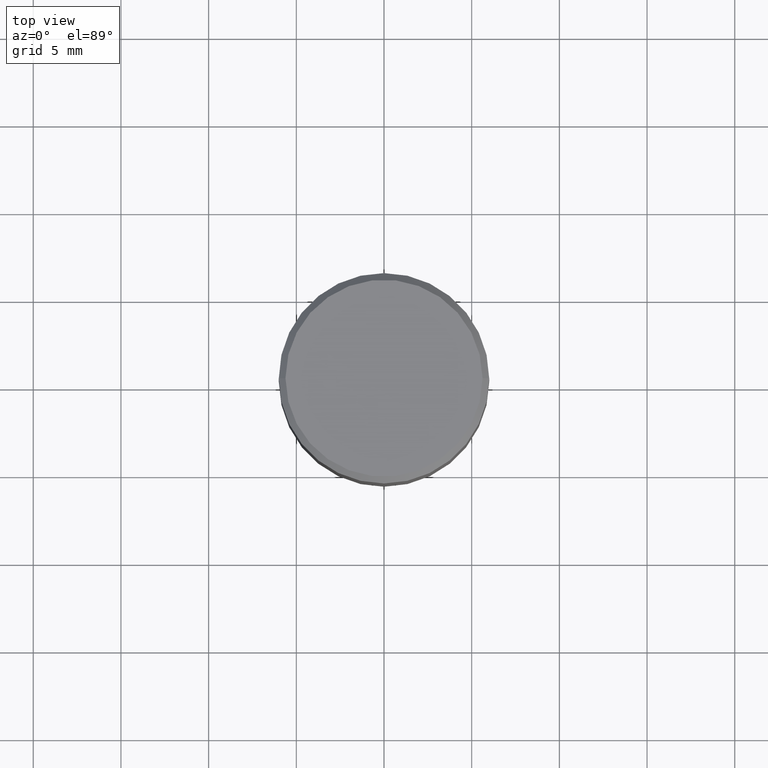
[diagram: clean part render]
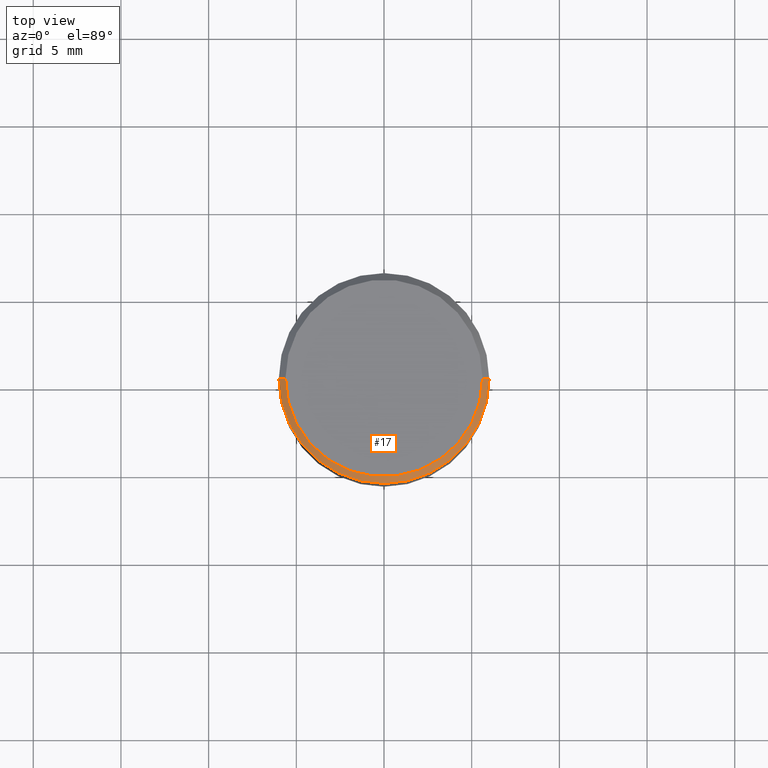
[diagram: same view with one face highlighted and labeled with its STEP entity id]
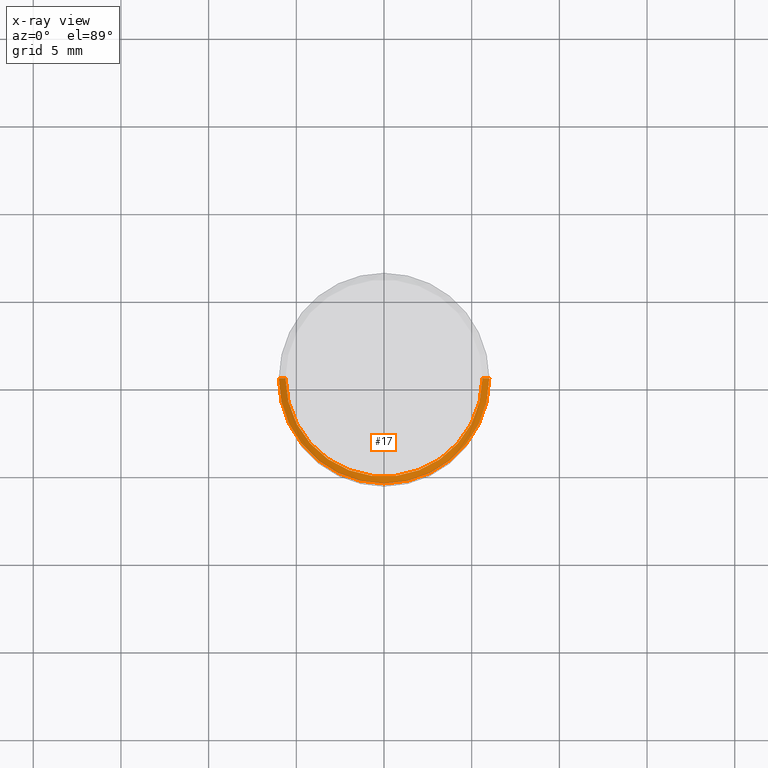
[diagram: x-ray of the same camera — body ghosted, the highlighted face saturated]
A machine part, top view. The second image highlights one B-rep face of the part: STEP entity #17.
The next image is the same camera in x-ray: the body ghosted, the highlighted face saturated — about 0% of this face is hidden behind the body in this view.
In plain terms, the highlighted conical surface has half-angle 45 deg.
Its self-contained STEP definition (entity closure, byte-faithful):
#10 = CIRCLE ( 'NONE', #43, 0.2212000000000000077 ) ;
#13 = DIRECTION ( 'NONE',  ( 1.000000000000000000, -6.982962677686266711E-15, 0.000000000000000000 ) ) ;
#14 = DIRECTION ( 'NONE',  ( -2.445468806185136597E-29, 3.491481338843145583E-15, 1.000000000000000000 ) ) ;
#17 = ADVANCED_FACE ( 'NONE', ( #259 ), #35, .T. ) ;
#22 = EDGE_CURVE ( 'NONE', #464, #269, #386, .T. ) ;
#28 = VECTOR ( 'NONE', #169, 39.37007874015748143 ) ;
#33 = AXIS2_PLACEMENT_3D ( 'NONE', #120, #146, #263 ) ;
#35 = CONICAL_SURFACE ( 'NONE', #33, 0.2361999999999999933, 0.7853981633974459475 ) ;
#38 = DIRECTION ( 'NONE',  ( 1.000000000000000000, -6.982962677686267499E-15, 4.877828720335458505E-29 ) ) ;
#43 = AXIS2_PLACEMENT_3D ( 'NONE', #399, #438, #38 ) ;
#66 = LINE ( 'NONE', #425, #28 ) ;
#81 = ORIENTED_EDGE ( 'NONE', *, *, #22, .T. ) ;
#82 = ORIENTED_EDGE ( 'NONE', *, *, #315, .F. ) ;
#90 = CARTESIAN_POINT ( 'NONE',  ( 0.2212000000000000077, -1.595182002131672613E-15, 4.701447564593453826E-17 ) ) ;
#94 = VECTOR ( 'NONE', #247, 39.37007874015748143 ) ;
#120 = CARTESIAN_POINT ( 'NONE',  ( 3.668203209277705088E-31, -5.237222008264718399E-17, -0.01499999999999999944 ) ) ;
#128 = VERTEX_POINT ( 'NONE', #90 ) ;
#146 = DIRECTION ( 'NONE',  ( 2.445468806185136597E-29, -3.491481338843145583E-15, -1.000000000000000000 ) ) ;
#169 = DIRECTION ( 'NONE',  ( -0.7071067811865459074, 2.468850131082239706E-15, -0.7071067811865492381 ) ) ;
#200 = ORIENTED_EDGE ( 'NONE', *, *, #301, .F. ) ;
#219 = EDGE_LOOP ( 'NONE', ( #200, #82, #369, #81 ) ) ;
#232 = CARTESIAN_POINT ( 'NONE',  ( -0.2361999999999999933, 8.973183152936629998E-16, -0.01499999999999999944 ) ) ;
#247 = DIRECTION ( 'NONE',  ( 0.7071067811865459074, -7.319954787623251312E-15, -0.7071067811865492381 ) ) ;
#259 = FACE_OUTER_BOUND ( 'NONE', #219, .T. ) ;
#263 = DIRECTION ( 'NONE',  ( -1.000000000000000000, 6.982962677686266711E-15, 0.000000000000000000 ) ) ;
#269 = VERTEX_POINT ( 'NONE', #384 ) ;
#270 = LINE ( 'NONE', #432, #94 ) ;
#301 = EDGE_CURVE ( 'NONE', #128, #269, #270, .T. ) ;
#315 = EDGE_CURVE ( 'NONE', #331, #128, #10, .T. ) ;
#331 = VERTEX_POINT ( 'NONE', #427 ) ;
#366 = AXIS2_PLACEMENT_3D ( 'NONE', #443, #14, #13 ) ;
#369 = ORIENTED_EDGE ( 'NONE', *, *, #372, .T. ) ;
#372 = EDGE_CURVE ( 'NONE', #331, #464, #66, .T. ) ;
#384 = CARTESIAN_POINT ( 'NONE',  ( 0.2361999999999999933, -1.701748004552143407E-15, -0.01499999999999999944 ) ) ;
#386 = CIRCLE ( 'NONE', #366, 0.2361999999999999933 ) ;
#399 = CARTESIAN_POINT ( 'NONE',  ( -1.149724336312568861E-45, 1.641501643732376549E-31, 4.701447564592356200E-17 ) ) ;
#425 = CARTESIAN_POINT ( 'NONE',  ( -0.2361999999999999933, 1.597003564386848854E-15, -0.01499999999999999944 ) ) ;
#427 = CARTESIAN_POINT ( 'NONE',  ( -0.2212000000000000077, 1.570817454345525709E-15, 4.701447564591266586E-17 ) ) ;
#432 = CARTESIAN_POINT ( 'NONE',  ( 0.2361999999999999933, -1.672821847156282947E-15, -0.01499999999999999944 ) ) ;
#438 = DIRECTION ( 'NONE',  ( -2.445468806185136597E-29, 3.491481338843145583E-15, 1.000000000000000000 ) ) ;
#443 = CARTESIAN_POINT ( 'NONE',  ( 3.668203209277705088E-31, -5.237222008264718399E-17, -0.01499999999999999944 ) ) ;
#464 = VERTEX_POINT ( 'NONE', #232 ) ;